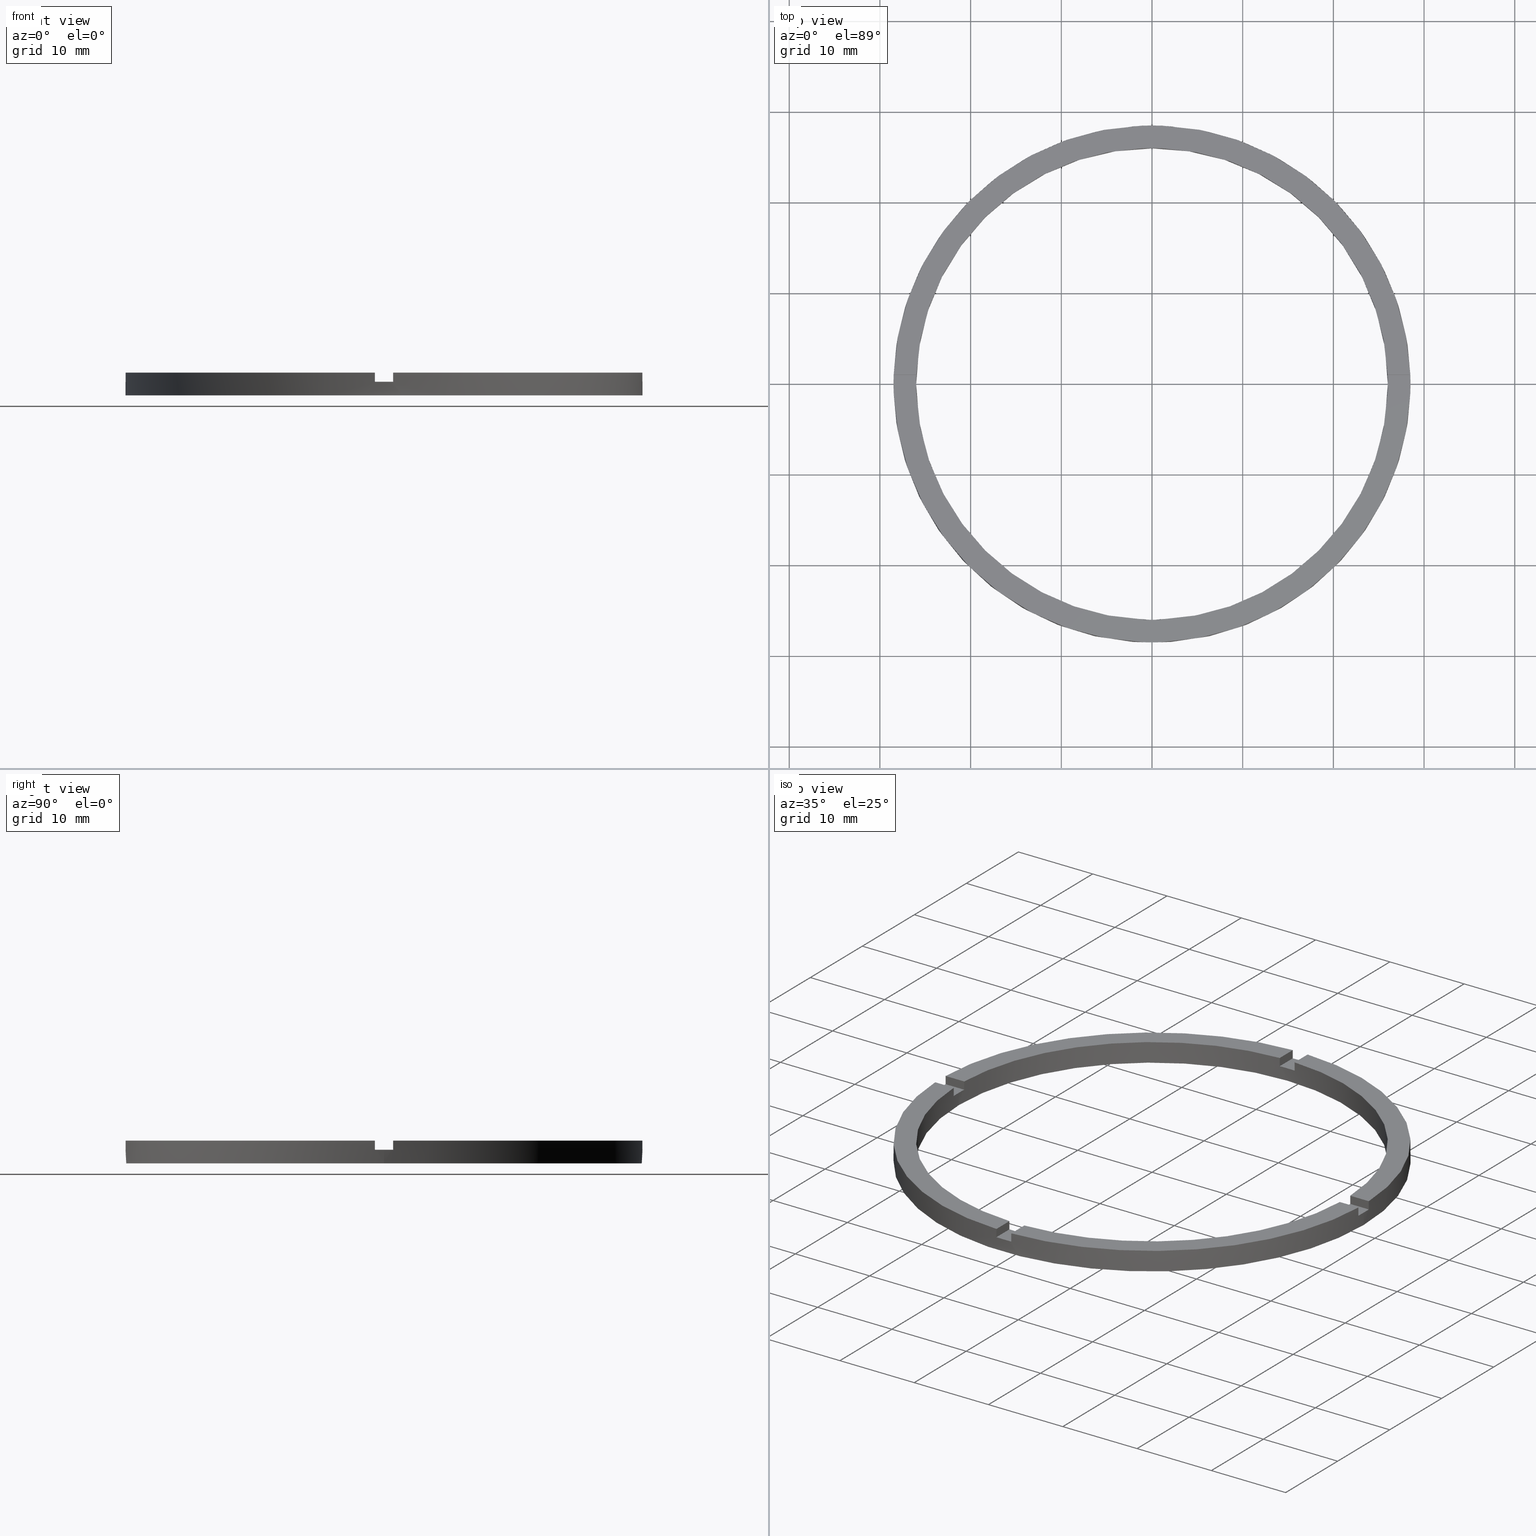
[diagram: canonical four-view strip — front | top / right | iso, engineering-drawing reading convention]
A machine part, canonical four-view strip (front | top / right | iso — engineering-drawing reading convention). The complete STEP part file that produces these views, byte-faithful:
ISO-10303-21;
HEADER;
FILE_DESCRIPTION (( 'STEP AP203' ),
    '1' );
FILE_NAME ('514118.step',
    '2024-12-26T02:39:14',
    ( 'MSI' ),
    ( '' ),
    'SwSTEP 2.0',
    'SolidWorks 2020',
    '' );
FILE_SCHEMA (( 'CONFIG_CONTROL_DESIGN' ));
ENDSEC;

DATA;
#1 = CARTESIAN_POINT ( 'NONE',  ( -25.98076211353316367, 0.9999999999999733546, 2.500000000000000000 ) ) ;
#2 = AXIS2_PLACEMENT_3D ( 'NONE', #506, #167, #369 ) ;
#3 = CARTESIAN_POINT ( 'NONE',  ( 0.000000000000000000, 0.000000000000000000, 2.500000000000000000 ) ) ;
#4 = PLANE ( 'NONE',  #2 ) ;
#5 = EDGE_CURVE ( 'NONE', #285, #237, #140, .T. ) ;
#6 = DIRECTION ( 'NONE',  ( -0.000000000000000000, -0.000000000000000000, -1.000000000000000000 ) ) ;
#7 = DIRECTION ( 'NONE',  ( 0.000000000000000000, 0.000000000000000000, 1.000000000000000000 ) ) ;
#8 = CC_DESIGN_APPROVAL ( #415, ( #621 ) ) ;
#9 = DIRECTION ( 'NONE',  ( 1.000000000000000000, 0.000000000000000000, 0.000000000000000000 ) ) ;
#10 = EDGE_CURVE ( 'NONE', #40, #599, #437, .T. ) ;
#11 = EDGE_CURVE ( 'NONE', #40, #287, #677, .T. ) ;
#12 = DIRECTION ( 'NONE',  ( 1.000000000000000000, 0.000000000000000000, 0.000000000000000000 ) ) ;
#13 = CC_DESIGN_PERSON_AND_ORGANIZATION_ASSIGNMENT ( #669, #14, ( #646 ) ) ;
#14 = PERSON_AND_ORGANIZATION_ROLE ( 'design_owner' ) ;
#15 = DIRECTION ( 'NONE',  ( -1.000000000000000000, -1.734723475976807341E-16, 0.000000000000000000 ) ) ;
#16 = CARTESIAN_POINT ( 'NONE',  ( 0.000000000000000000, 0.000000000000000000, 2.500000000000000000 ) ) ;
#17 = PRODUCT_RELATED_PRODUCT_CATEGORY ( 'detail', '', ( #646 ) ) ;
#18 = DIRECTION ( 'NONE',  ( -0.000000000000000000, -0.000000000000000000, -1.000000000000000000 ) ) ;
#19 = AXIS2_PLACEMENT_3D ( 'NONE', #356, #7, #538 ) ;
#20 = UNCERTAINTY_MEASURE_WITH_UNIT (LENGTH_MEASURE( 1.000000000000000082E-05 ), #606, 'distance_accuracy_value', 'NONE');
#21 = DATE_TIME_ROLE ( 'creation_date' ) ;
#22 = APPLICATION_CONTEXT ( 'configuration controlled 3d designs of mechanical parts and assemblies' ) ;
#23 = EDGE_CURVE ( 'NONE', #303, #101, #164, .T. ) ;
#24 = CARTESIAN_POINT ( 'NONE',  ( -28.48245073725222909, -1.000000000000027089, 1.500000000000000000 ) ) ;
#25 = DIRECTION ( 'NONE',  ( -0.000000000000000000, -0.000000000000000000, -1.000000000000000000 ) ) ;
#26 = CARTESIAN_POINT ( 'NONE',  ( 0.000000000000000000, 0.000000000000000000, 1.500000000000000000 ) ) ;
#27 = CC_DESIGN_PERSON_AND_ORGANIZATION_ASSIGNMENT ( #139, #432, ( #362 ) ) ;
#28 = DIRECTION ( 'NONE',  ( 0.000000000000000000, 0.000000000000000000, 1.000000000000000000 ) ) ;
#29 = CARTESIAN_POINT ( 'NONE',  ( 0.000000000000000000, 0.000000000000000000, 0.000000000000000000 ) ) ;
#30 = EDGE_CURVE ( 'NONE', #620, #105, #138, .T. ) ;
#31 = ORIENTED_EDGE ( 'NONE', *, *, #23, .T. ) ;
#32 = CARTESIAN_POINT ( 'NONE',  ( -28.48245073725222909, -1.000000000000027089, 2.500000000000000000 ) ) ;
#33 = VERTEX_POINT ( 'NONE', #556 ) ;
#34 = ORIENTED_EDGE ( 'NONE', *, *, #495, .F. ) ;
#35 = AXIS2_PLACEMENT_3D ( 'NONE', #161, #536, #572 ) ;
#36 = ORIENTED_EDGE ( 'NONE', *, *, #635, .T. ) ;
#37 = ORIENTED_EDGE ( 'NONE', *, *, #712, .T. ) ;
#38 = CARTESIAN_POINT ( 'NONE',  ( 18.50000000000000000, 0.9999999999998427924, 1.500000000000000000 ) ) ;
#39 = VERTEX_POINT ( 'NONE', #24 ) ;
#40 = VERTEX_POINT ( 'NONE', #194 ) ;
#41 = ORIENTED_EDGE ( 'NONE', *, *, #184, .T. ) ;
#42 = ORIENTED_EDGE ( 'NONE', *, *, #722, .F. ) ;
#43 = ADVANCED_FACE ( 'NONE', ( #694 ), #428, .F. ) ;
#44 = PLANE ( 'NONE',  #151 ) ;
#45 = DIRECTION ( 'NONE',  ( 1.000000000000000000, 0.000000000000000000, -0.000000000000000000 ) ) ;
#46 = AXIS2_PLACEMENT_3D ( 'NONE', #122, #633, #292 ) ;
#47 = ORIENTED_EDGE ( 'NONE', *, *, #624, .T. ) ;
#48 = AXIS2_PLACEMENT_3D ( 'NONE', #60, #403, #666 ) ;
#49 = ORIENTED_EDGE ( 'NONE', *, *, #539, .T. ) ;
#50 = EDGE_LOOP ( 'NONE', ( #358, #331, #353, #352 ) ) ;
#51 = ORIENTED_EDGE ( 'NONE', *, *, #635, .F. ) ;
#52 = DIRECTION ( 'NONE',  ( 0.000000000000000000, 0.000000000000000000, 1.000000000000000000 ) ) ;
#53 = DIRECTION ( 'NONE',  ( 1.000000000000000000, 0.000000000000000000, -0.000000000000000000 ) ) ;
#54 = ORIENTED_EDGE ( 'NONE', *, *, #5, .T. ) ;
#55 = VERTEX_POINT ( 'NONE', #260 ) ;
#56 = ORIENTED_EDGE ( 'NONE', *, *, #514, .F. ) ;
#57 = ORIENTED_EDGE ( 'NONE', *, *, #517, .F. ) ;
#58 = ORIENTED_EDGE ( 'NONE', *, *, #289, .T. ) ;
#59 = PERSON_AND_ORGANIZATION_ROLE ( 'creator' ) ;
#60 = CARTESIAN_POINT ( 'NONE',  ( 0.000000000000000000, 0.000000000000000000, 1.500000000000000000 ) ) ;
#61 = ORIENTED_EDGE ( 'NONE', *, *, #475, .T. ) ;
#62 = ORIENTED_EDGE ( 'NONE', *, *, #11, .T. ) ;
#63 = ORIENTED_EDGE ( 'NONE', *, *, #712, .F. ) ;
#64 = CARTESIAN_POINT ( 'NONE',  ( 0.000000000000000000, 0.000000000000000000, 2.500000000000000000 ) ) ;
#65 = ORIENTED_EDGE ( 'NONE', *, *, #192, .T. ) ;
#66 = ORIENTED_EDGE ( 'NONE', *, *, #334, .F. ) ;
#67 = EDGE_CURVE ( 'NONE', #590, #301, #156, .T. ) ;
#68 = ORIENTED_EDGE ( 'NONE', *, *, #673, .F. ) ;
#69 = VERTEX_POINT ( 'NONE', #381 ) ;
#70 = APPROVAL_STATUS ( 'not_yet_approved' ) ;
#71 = ORIENTED_EDGE ( 'NONE', *, *, #371, .T. ) ;
#72 = ORIENTED_EDGE ( 'NONE', *, *, #192, .F. ) ;
#73 = ORIENTED_EDGE ( 'NONE', *, *, #383, .F. ) ;
#74 = ORIENTED_EDGE ( 'NONE', *, *, #289, .F. ) ;
#75 = CARTESIAN_POINT ( 'NONE',  ( 0.000000000000000000, 0.000000000000000000, 1.500000000000000000 ) ) ;
#76 = VERTEX_POINT ( 'NONE', #688 ) ;
#77 = EDGE_LOOP ( 'NONE', ( #316, #628, #575, #250 ) ) ;
#78 = CC_DESIGN_PERSON_AND_ORGANIZATION_ASSIGNMENT ( #676, #209, ( #115 ) ) ;
#79 = EDGE_LOOP ( 'NONE', ( #330, #307, #311, #502 ) ) ;
#80 = VERTEX_POINT ( 'NONE', #510 ) ;
#81 = DIRECTION ( 'NONE',  ( 0.000000000000000000, 0.000000000000000000, 1.000000000000000000 ) ) ;
#82 = ORIENTED_EDGE ( 'NONE', *, *, #368, .T. ) ;
#83 = ORIENTED_EDGE ( 'NONE', *, *, #528, .F. ) ;
#84 = DIRECTION ( 'NONE',  ( 0.000000000000000000, 0.000000000000000000, 1.000000000000000000 ) ) ;
#85 = ORIENTED_EDGE ( 'NONE', *, *, #534, .F. ) ;
#86 = EDGE_CURVE ( 'NONE', #343, #622, #172, .T. ) ;
#87 = EDGE_LOOP ( 'NONE', ( #305, #223 ) ) ;
#88 = ORIENTED_EDGE ( 'NONE', *, *, #530, .F. ) ;
#89 = ORIENTED_EDGE ( 'NONE', *, *, #109, .T. ) ;
#90 = CARTESIAN_POINT ( 'NONE',  ( 0.9999999999998402389, -25.98076211353317078, 2.500000000000000000 ) ) ;
#91 = ORIENTED_EDGE ( 'NONE', *, *, #775, .F. ) ;
#92 = EDGE_CURVE ( 'NONE', #592, #303, #180, .T. ) ;
#93 = VERTEX_POINT ( 'NONE', #551 ) ;
#94 = EDGE_LOOP ( 'NONE', ( #603, #42, #227, #319 ) ) ;
#95 = EDGE_LOOP ( 'NONE', ( #574, #37, #83, #322 ) ) ;
#96 = DIRECTION ( 'NONE',  ( 0.000000000000000000, 0.000000000000000000, 1.000000000000000000 ) ) ;
#97 = ORIENTED_EDGE ( 'NONE', *, *, #653, .T. ) ;
#98 = ORIENTED_EDGE ( 'NONE', *, *, #135, .F. ) ;
#99 = PLANE ( 'NONE',  #638 ) ;
#100 = AXIS2_PLACEMENT_3D ( 'NONE', #64, #512, #443 ) ;
#101 = VERTEX_POINT ( 'NONE', #312 ) ;
#102 = DIRECTION ( 'NONE',  ( 0.000000000000000000, 0.000000000000000000, 1.000000000000000000 ) ) ;
#103 = VERTEX_POINT ( 'NONE', #449 ) ;
#104 = CARTESIAN_POINT ( 'NONE',  ( 25.98076211353317078, 0.9999999999998430145, 2.500000000000000000 ) ) ;
#105 = VERTEX_POINT ( 'NONE', #255 ) ;
#106 = EDGE_CURVE ( 'NONE', #55, #599, #426, .T. ) ;
#107 = DIRECTION ( 'NONE',  ( 1.000000000000000000, 0.000000000000000000, 0.000000000000000000 ) ) ;
#108 = CARTESIAN_POINT ( 'NONE',  ( -25.98076211353316367, -1.000000000000026645, 1.500000000000000000 ) ) ;
#109 = EDGE_CURVE ( 'NONE', #80, #237, #162, .T. ) ;
#110 = AXIS2_PLACEMENT_3D ( 'NONE', #525, #471, #645 ) ;
#111 = CARTESIAN_POINT ( 'NONE',  ( 0.000000000000000000, 0.000000000000000000, 1.500000000000000000 ) ) ;
#112 = DIRECTION ( 'NONE',  ( -0.000000000000000000, 0.000000000000000000, 1.000000000000000000 ) ) ;
#113 = PLANE ( 'NONE',  #19 ) ;
#114 = CARTESIAN_POINT ( 'NONE',  ( 0.000000000000000000, 0.000000000000000000, 2.500000000000000000 ) ) ;
#115 = PRODUCT_DEFINITION_FORMATION_WITH_SPECIFIED_SOURCE ( '�κ�', '', #646, .NOT_KNOWN. ) ;
#116 = DIRECTION ( 'NONE',  ( -4.336808689942018352E-17, 1.000000000000000000, 0.000000000000000000 ) ) ;
#117 = CARTESIAN_POINT ( 'NONE',  ( 28.48245073725223264, 0.9999999999998432365, 2.500000000000000000 ) ) ;
#118 = DIRECTION ( 'NONE',  ( 0.000000000000000000, 0.000000000000000000, 1.000000000000000000 ) ) ;
#119 = AXIS2_PLACEMENT_3D ( 'NONE', #480, #672, #251 ) ;
#120 = APPROVAL_STATUS ( 'not_yet_approved' ) ;
#121 = DIRECTION ( 'NONE',  ( 1.000000000000000000, 0.000000000000000000, 0.000000000000000000 ) ) ;
#122 = CARTESIAN_POINT ( 'NONE',  ( 0.000000000000000000, 0.000000000000000000, 2.500000000000000000 ) ) ;
#123 = AXIS2_PLACEMENT_3D ( 'NONE', #378, #697, #550 ) ;
#124 = DIRECTION ( 'NONE',  ( 0.000000000000000000, 0.000000000000000000, 1.000000000000000000 ) ) ;
#125 = CARTESIAN_POINT ( 'NONE',  ( -1.000000000000026423, 28.48245073725222909, 1.500000000000000000 ) ) ;
#126 = EDGE_CURVE ( 'NONE', #76, #101, #427, .T. ) ;
#127 = CARTESIAN_POINT ( 'NONE',  ( 0.000000000000000000, 0.000000000000000000, 0.000000000000000000 ) ) ;
#128 = DATE_AND_TIME ( #691, #410 ) ;
#129 = PERSON_AND_ORGANIZATION ( #683, #695 ) ;
#130 = CARTESIAN_POINT ( 'NONE',  ( 0.000000000000000000, 0.000000000000000000, 2.500000000000000000 ) ) ;
#131 = COORDINATED_UNIVERSAL_TIME_OFFSET ( 8, 0, .AHEAD. ) ;
#132 = CC_DESIGN_APPROVAL ( #254, ( #115 ) ) ;
#133 = APPROVAL_DATE_TIME ( #128, #254 ) ;
#134 = FACE_OUTER_BOUND ( 'NONE', #764, .T. ) ;
#135 = EDGE_CURVE ( 'NONE', #558, #69, #170, .T. ) ;
#136 = EDGE_CURVE ( 'NONE', #335, #69, #163, .T. ) ;
#137 = DATE_AND_TIME ( #674, #393 ) ;
#138 = LINE ( 'NONE', #643, #157 ) ;
#139 = PERSON_AND_ORGANIZATION ( #683, #695 ) ;
#140 = CIRCLE ( 'NONE', #374, 26.00000000000000355 ) ;
#141 = APPROVAL_DATE_TIME ( #670, #268 ) ;
#142 = ORIENTED_EDGE ( 'NONE', *, *, #136, .T. ) ;
#143 = COORDINATED_UNIVERSAL_TIME_OFFSET ( 8, 0, .AHEAD. ) ;
#144 = DIRECTION ( 'NONE',  ( -0.000000000000000000, -0.000000000000000000, -1.000000000000000000 ) ) ;
#145 = EDGE_CURVE ( 'NONE', #590, #343, #706, .T. ) ;
#146 = CALENDAR_DATE ( 2024, 26, 12 ) ;
#147 = SHAPE_DEFINITION_REPRESENTATION ( #366, #456 ) ;
#148 = DIRECTION ( 'NONE',  ( 0.000000000000000000, 1.000000000000000000, 0.000000000000000000 ) ) ;
#149 = VECTOR ( 'NONE', #417, 1000.000000000000000 ) ;
#150 = CARTESIAN_POINT ( 'NONE',  ( -26.00000000000000355, 0.000000000000000000, 2.500000000000000000 ) ) ;
#151 = AXIS2_PLACEMENT_3D ( 'NONE', #247, #619, #121 ) ;
#152 = LINE ( 'NONE', #266, #716 ) ;
#153 = LOCAL_TIME ( 10, 39, 14.00000000000000000, #671 ) ;
#154 = PLANE ( 'NONE',  #483 ) ;
#155 = ADVANCED_FACE ( 'NONE', ( #703 ), #704, .F. ) ;
#156 = LINE ( 'NONE', #200, #396 ) ;
#157 = VECTOR ( 'NONE', #709, 1000.000000000000000 ) ;
#158 = FACE_OUTER_BOUND ( 'NONE', #494, .T. ) ;
#159 = APPROVAL_PERSON_ORGANIZATION ( #395, #254, #256 ) ;
#160 = ORIENTED_EDGE ( 'NONE', *, *, #653, .F. ) ;
#161 = CARTESIAN_POINT ( 'NONE',  ( 18.50000000000000000, -1.000000000000157208, 1.500000000000000000 ) ) ;
#162 = LINE ( 'NONE', #199, #708 ) ;
#163 = LINE ( 'NONE', #90, #183 ) ;
#164 = LINE ( 'NONE', #682, #429 ) ;
#165 = CIRCLE ( 'NONE', #336, 28.50000000000000000 ) ;
#166 = CARTESIAN_POINT ( 'NONE',  ( 0.000000000000000000, 0.000000000000000000, 1.500000000000000000 ) ) ;
#167 = DIRECTION ( 'NONE',  ( 0.000000000000000000, -0.000000000000000000, 1.000000000000000000 ) ) ;
#168 = DIRECTION ( 'NONE',  ( 1.000000000000000000, 0.000000000000000000, -0.000000000000000000 ) ) ;
#169 = VECTOR ( 'NONE', #509, 1000.000000000000000 ) ;
#170 = LINE ( 'NONE', #252, #679 ) ;
#171 = FACE_OUTER_BOUND ( 'NONE', #570, .T. ) ;
#172 = LINE ( 'NONE', #548, #675 ) ;
#173 = DIRECTION ( 'NONE',  ( 0.000000000000000000, 0.000000000000000000, 1.000000000000000000 ) ) ;
#174 = CARTESIAN_POINT ( 'NONE',  ( -1.000000000000159872, -25.98076211353315657, 2.500000000000000000 ) ) ;
#175 = CIRCLE ( 'NONE', #758, 26.00000000000000355 ) ;
#176 = AXIS2_PLACEMENT_3D ( 'NONE', #38, #116, #762 ) ;
#177 = FACE_OUTER_BOUND ( 'NONE', #341, .T. ) ;
#178 = VECTOR ( 'NONE', #6, 1000.000000000000000 ) ;
#179 = ADVANCED_FACE ( 'NONE', ( #158 ), #544, .F. ) ;
#180 = LINE ( 'NONE', #379, #431 ) ;
#181 = CARTESIAN_POINT ( 'NONE',  ( 0.000000000000000000, 0.000000000000000000, 2.500000000000000000 ) ) ;
#182 = DIRECTION ( 'NONE',  ( 0.000000000000000000, 0.000000000000000000, 1.000000000000000000 ) ) ;
#183 = VECTOR ( 'NONE', #375, 1000.000000000000000 ) ;
#184 = EDGE_CURVE ( 'NONE', #340, #343, #711, .T. ) ;
#185 = VECTOR ( 'NONE', #658, 1000.000000000000000 ) ;
#186 = VECTOR ( 'NONE', #273, 1000.000000000000000 ) ;
#187 = VECTOR ( 'NONE', #613, 1000.000000000000000 ) ;
#188 = DIRECTION ( 'NONE',  ( 0.000000000000000000, 0.000000000000000000, 1.000000000000000000 ) ) ;
#189 = LINE ( 'NONE', #488, #468 ) ;
#190 = AXIS2_PLACEMENT_3D ( 'NONE', #519, #112, #731 ) ;
#191 = CIRCLE ( 'NONE', #119, 28.50000000000000000 ) ;
#192 = EDGE_CURVE ( 'NONE', #557, #103, #165, .T. ) ;
#193 = DIRECTION ( 'NONE',  ( 0.000000000000000000, 0.000000000000000000, 1.000000000000000000 ) ) ;
#194 = CARTESIAN_POINT ( 'NONE',  ( -26.00000000000000355, 0.000000000000000000, 1.500000000000000000 ) ) ;
#195 = VECTOR ( 'NONE', #489, 1000.000000000000000 ) ;
#196 = VECTOR ( 'NONE', #707, 1000.000000000000000 ) ;
#197 = DIRECTION ( 'NONE',  ( 1.000000000000000000, 1.734723475976807341E-16, -0.000000000000000000 ) ) ;
#198 = VECTOR ( 'NONE', #238, 1000.000000000000000 ) ;
#199 = CARTESIAN_POINT ( 'NONE',  ( 0.9999999999999735767, 25.98076211353316367, 2.500000000000000000 ) ) ;
#200 = CARTESIAN_POINT ( 'NONE',  ( -18.50000000000018474, 0.9999999999999746869, 1.500000000000000000 ) ) ;
#201 = CIRCLE ( 'NONE', #48, 26.00000000000000355 ) ;
#202 = AXIS2_PLACEMENT_3D ( 'NONE', #626, #759, #15 ) ;
#203 = VECTOR ( 'NONE', #425, 1000.000000000000000 ) ;
#204 = DIRECTION ( 'NONE',  ( 1.000000000000000000, 0.000000000000000000, 0.000000000000000000 ) ) ;
#205 = CIRCLE ( 'NONE', #665, 26.00000000000000355 ) ;
#206 = AXIS2_PLACEMENT_3D ( 'NONE', #535, #188, #744 ) ;
#207 = LINE ( 'NONE', #663, #187 ) ;
#208 = DIRECTION ( 'NONE',  ( 0.000000000000000000, 0.000000000000000000, 1.000000000000000000 ) ) ;
#209 = PERSON_AND_ORGANIZATION_ROLE ( 'creator' ) ;
#210 = LINE ( 'NONE', #540, #203 ) ;
#211 = CARTESIAN_POINT ( 'NONE',  ( 0.000000000000000000, 0.000000000000000000, 1.500000000000000000 ) ) ;
#212 = CIRCLE ( 'NONE', #576, 28.50000000000000000 ) ;
#213 = VECTOR ( 'NONE', #197, 1000.000000000000000 ) ;
#214 = VECTOR ( 'NONE', #332, 1000.000000000000000 ) ;
#215 = FACE_OUTER_BOUND ( 'NONE', #94, .T. ) ;
#216 = CIRCLE ( 'NONE', #564, 28.50000000000000000 ) ;
#217 = LINE ( 'NONE', #416, #756 ) ;
#218 = PLANE ( 'NONE',  #110 ) ;
#219 = CIRCLE ( 'NONE', #524, 26.00000000000000355 ) ;
#220 = DIRECTION ( 'NONE',  ( 1.000000000000000000, 1.734723475976807341E-16, 0.000000000000000000 ) ) ;
#221 = VERTEX_POINT ( 'NONE', #125 ) ;
#222 = DIRECTION ( 'NONE',  ( 1.000000000000000000, 0.000000000000000000, -0.000000000000000000 ) ) ;
#223 = ORIENTED_EDGE ( 'NONE', *, *, #539, .F. ) ;
#224 = ORIENTED_EDGE ( 'NONE', *, *, #67, .F. ) ;
#225 = AXIS2_PLACEMENT_3D ( 'NONE', #718, #144, #710 ) ;
#226 = DIRECTION ( 'NONE',  ( 1.000000000000000000, 0.000000000000000000, 0.000000000000000000 ) ) ;
#227 = ORIENTED_EDGE ( 'NONE', *, *, #380, .F. ) ;
#228 = DIRECTION ( 'NONE',  ( 1.000000000000000000, 0.000000000000000000, -0.000000000000000000 ) ) ;
#229 = ORIENTED_EDGE ( 'NONE', *, *, #106, .T. ) ;
#230 = ADVANCED_FACE ( 'NONE', ( #171 ), #696, .T. ) ;
#231 = ORIENTED_EDGE ( 'NONE', *, *, #109, .F. ) ;
#232 = ORIENTED_EDGE ( 'NONE', *, *, #10, .T. ) ;
#233 = CARTESIAN_POINT ( 'NONE',  ( 0.000000000000000000, 0.000000000000000000, 1.500000000000000000 ) ) ;
#234 = EDGE_CURVE ( 'NONE', #592, #526, #434, .T. ) ;
#235 = CARTESIAN_POINT ( 'NONE',  ( -1.000000000000026423, 28.48245073725222909, 2.500000000000000000 ) ) ;
#236 = ORIENTED_EDGE ( 'NONE', *, *, #136, .F. ) ;
#237 = VERTEX_POINT ( 'NONE', #639 ) ;
#238 = DIRECTION ( 'NONE',  ( -1.301042606982605567E-16, 1.000000000000000000, -0.000000000000000000 ) ) ;
#239 = CARTESIAN_POINT ( 'NONE',  ( 0.000000000000000000, 0.000000000000000000, 0.000000000000000000 ) ) ;
#240 = DIRECTION ( 'NONE',  ( 1.000000000000000000, 0.000000000000000000, 0.000000000000000000 ) ) ;
#241 = CARTESIAN_POINT ( 'NONE',  ( 0.000000000000000000, 0.000000000000000000, 0.000000000000000000 ) ) ;
#242 = CARTESIAN_POINT ( 'NONE',  ( 28.48245073725223264, 0.9999999999998432365, 2.500000000000000000 ) ) ;
#243 = EDGE_CURVE ( 'NONE', #526, #338, #713, .T. ) ;
#244 = AXIS2_PLACEMENT_3D ( 'NONE', #211, #641, #778 ) ;
#245 = DIRECTION ( 'NONE',  ( -0.000000000000000000, 0.000000000000000000, 1.000000000000000000 ) ) ;
#246 = ADVANCED_FACE ( 'NONE', ( #418 ), #394, .F. ) ;
#247 = CARTESIAN_POINT ( 'NONE',  ( 0.000000000000000000, 0.000000000000000000, 1.500000000000000000 ) ) ;
#248 = CARTESIAN_POINT ( 'NONE',  ( -1.000000000000159650, -28.48245073725222554, 2.500000000000000000 ) ) ;
#249 = ORIENTED_EDGE ( 'NONE', *, *, #616, .T. ) ;
#250 = ORIENTED_EDGE ( 'NONE', *, *, #367, .F. ) ;
#251 = DIRECTION ( 'NONE',  ( 1.000000000000000000, 0.000000000000000000, 0.000000000000000000 ) ) ;
#252 = CARTESIAN_POINT ( 'NONE',  ( 0.9999999999998391287, -18.50000000000018474, 1.500000000000000000 ) ) ;
#253 = CARTESIAN_POINT ( 'NONE',  ( 0.9999999999998404610, -28.48245073725223264, 1.500000000000000000 ) ) ;
#254 = APPROVAL ( #382, 'δָ��' ) ;
#255 = CARTESIAN_POINT ( 'NONE',  ( -1.000000000000159650, -28.48245073725222554, 1.500000000000000000 ) ) ;
#256 = APPROVAL_ROLE ( '' ) ;
#257 = DIRECTION ( 'NONE',  ( -0.000000000000000000, -1.000000000000000000, -0.000000000000000000 ) ) ;
#258 = DIRECTION ( 'NONE',  ( -1.000000000000000000, 0.000000000000000000, 0.000000000000000000 ) ) ;
#259 = CARTESIAN_POINT ( 'NONE',  ( 25.98076211353317078, 0.9999999999998430145, 2.500000000000000000 ) ) ;
#260 = CARTESIAN_POINT ( 'NONE',  ( -25.98076211353316367, -1.000000000000026645, 2.500000000000000000 ) ) ;
#261 = CARTESIAN_POINT ( 'NONE',  ( -25.98076211353316367, 0.9999999999999733546, 1.500000000000000000 ) ) ;
#262 = AXIS2_PLACEMENT_3D ( 'NONE', #661, #580, #240 ) ;
#263 = CARTESIAN_POINT ( 'NONE',  ( -26.00000000000000355, 0.000000000000000000, 0.000000000000000000 ) ) ;
#264 = EDGE_CURVE ( 'NONE', #584, #221, #715, .T. ) ;
#265 = DIRECTION ( 'NONE',  ( 0.000000000000000000, 0.000000000000000000, 1.000000000000000000 ) ) ;
#266 = CARTESIAN_POINT ( 'NONE',  ( -1.000000000000026423, 18.50000000000000355, 1.500000000000000000 ) ) ;
#267 = DIRECTION ( 'NONE',  ( -0.000000000000000000, -0.000000000000000000, -1.000000000000000000 ) ) ;
#268 = APPROVAL ( #70, 'δָ��' ) ;
#269 = DIRECTION ( 'NONE',  ( 1.000000000000000000, 0.000000000000000000, 0.000000000000000000 ) ) ;
#270 = EDGE_CURVE ( 'NONE', #761, #285, #420, .T. ) ;
#271 = EDGE_CURVE ( 'NONE', #526, #594, #175, .T. ) ;
#272 = DIRECTION ( 'NONE',  ( -0.000000000000000000, -0.000000000000000000, -1.000000000000000000 ) ) ;
#273 = DIRECTION ( 'NONE',  ( -0.000000000000000000, -0.000000000000000000, -1.000000000000000000 ) ) ;
#274 = ADVANCED_FACE ( 'NONE', ( #446 ), #780, .T. ) ;
#275 = CARTESIAN_POINT ( 'NONE',  ( 0.9999999999998391287, -18.50000000000018474, 2.500000000000000000 ) ) ;
#276 = EDGE_CURVE ( 'NONE', #221, #93, #152, .T. ) ;
#277 = ADVANCED_FACE ( 'NONE', ( #177 ), #560, .T. ) ;
#278 = CARTESIAN_POINT ( 'NONE',  ( 18.50000000000000000, -1.000000000000157208, 1.500000000000000000 ) ) ;
#279 = CARTESIAN_POINT ( 'NONE',  ( -28.50000000000000000, 0.000000000000000000, 2.500000000000000000 ) ) ;
#280 = CARTESIAN_POINT ( 'NONE',  ( 0.000000000000000000, 0.000000000000000000, 2.500000000000000000 ) ) ;
#281 = CC_DESIGN_SECURITY_CLASSIFICATION ( #362, ( #115 ) ) ;
#282 = ADVANCED_FACE ( 'NONE', ( #700 ), #99, .T. ) ;
#283 = AXIS2_PLACEMENT_3D ( 'NONE', #26, #351, #228 ) ;
#284 = CARTESIAN_POINT ( 'NONE',  ( 0.000000000000000000, 0.000000000000000000, 2.500000000000000000 ) ) ;
#285 = VERTEX_POINT ( 'NONE', #259 ) ;
#286 = ORIENTED_EDGE ( 'NONE', *, *, #517, .T. ) ;
#287 = VERTEX_POINT ( 'NONE', #263 ) ;
#288 = CARTESIAN_POINT ( 'NONE',  ( 28.50000000000000000, 3.490243377569956456E-15, 2.500000000000000000 ) ) ;
#289 = EDGE_CURVE ( 'NONE', #80, #93, #719, .T. ) ;
#290 = ORIENTED_EDGE ( 'NONE', *, *, #86, .F. ) ;
#291 = EDGE_LOOP ( 'NONE', ( #568, #585, #31, #88 ) ) ;
#292 = DIRECTION ( 'NONE',  ( -1.000000000000000000, 0.000000000000000000, 0.000000000000000000 ) ) ;
#293 = ORIENTED_EDGE ( 'NONE', *, *, #276, .F. ) ;
#294 = SECURITY_CLASSIFICATION_LEVEL ( 'unclassified' ) ;
#295 = ORIENTED_EDGE ( 'NONE', *, *, #30, .T. ) ;
#296 = DIRECTION ( 'NONE',  ( 1.000000000000000000, 0.000000000000000000, 0.000000000000000000 ) ) ;
#297 = ORIENTED_EDGE ( 'NONE', *, *, #660, .T. ) ;
#298 = VERTEX_POINT ( 'NONE', #387 ) ;
#299 = DIRECTION ( 'NONE',  ( -1.301042606982605567E-16, 1.000000000000000000, -0.000000000000000000 ) ) ;
#300 = ORIENTED_EDGE ( 'NONE', *, *, #234, .T. ) ;
#301 = VERTEX_POINT ( 'NONE', #693 ) ;
#302 = CARTESIAN_POINT ( 'NONE',  ( -18.50000000000018474, -1.000000000000025313, 2.500000000000000000 ) ) ;
#303 = VERTEX_POINT ( 'NONE', #447 ) ;
#304 = AXIS2_PLACEMENT_3D ( 'NONE', #280, #182, #53 ) ;
#305 = ORIENTED_EDGE ( 'NONE', *, *, #624, .F. ) ;
#306 = ORIENTED_EDGE ( 'NONE', *, *, #11, .F. ) ;
#307 = ORIENTED_EDGE ( 'NONE', *, *, #422, .F. ) ;
#308 = EDGE_CURVE ( 'NONE', #592, #611, #440, .T. ) ;
#309 = EDGE_LOOP ( 'NONE', ( #354, #229, #34, #760 ) ) ;
#310 = ORIENTED_EDGE ( 'NONE', *, *, #234, .F. ) ;
#311 = ORIENTED_EDGE ( 'NONE', *, *, #545, .F. ) ;
#312 = CARTESIAN_POINT ( 'NONE',  ( 28.48245073725222554, -1.000000000000156763, 2.500000000000000000 ) ) ;
#313 = ORIENTED_EDGE ( 'NONE', *, *, #264, .T. ) ;
#314 = ORIENTED_EDGE ( 'NONE', *, *, #67, .T. ) ;
#315 = VERTEX_POINT ( 'NONE', #248 ) ;
#316 = ORIENTED_EDGE ( 'NONE', *, *, #30, .F. ) ;
#317 = ORIENTED_EDGE ( 'NONE', *, *, #334, .T. ) ;
#318 = ORIENTED_EDGE ( 'NONE', *, *, #135, .T. ) ;
#319 = ORIENTED_EDGE ( 'NONE', *, *, #126, .T. ) ;
#320 = CARTESIAN_POINT ( 'NONE',  ( -1.000000000000159650, -28.48245073725222554, 2.500000000000000000 ) ) ;
#321 = ORIENTED_EDGE ( 'NONE', *, *, #308, .T. ) ;
#322 = ORIENTED_EDGE ( 'NONE', *, *, #617, .F. ) ;
#323 = PLANE ( 'NONE',  #35 ) ;
#324 = ORIENTED_EDGE ( 'NONE', *, *, #442, .F. ) ;
#325 = ORIENTED_EDGE ( 'NONE', *, *, #514, .T. ) ;
#326 = ORIENTED_EDGE ( 'NONE', *, *, #530, .T. ) ;
#327 = ORIENTED_EDGE ( 'NONE', *, *, #461, .F. ) ;
#328 = DIRECTION ( 'NONE',  ( 0.000000000000000000, -0.000000000000000000, 1.000000000000000000 ) ) ;
#329 = ORIENTED_EDGE ( 'NONE', *, *, #368, .F. ) ;
#330 = ORIENTED_EDGE ( 'NONE', *, *, #355, .F. ) ;
#331 = ORIENTED_EDGE ( 'NONE', *, *, #5, .F. ) ;
#332 = DIRECTION ( 'NONE',  ( 0.000000000000000000, 0.000000000000000000, 1.000000000000000000 ) ) ;
#333 = EDGE_LOOP ( 'NONE', ( #71, #65, #553, #587, #310, #321 ) ) ;
#334 = EDGE_CURVE ( 'NONE', #340, #93, #419, .T. ) ;
#335 = VERTEX_POINT ( 'NONE', #543 ) ;
#336 = AXIS2_PLACEMENT_3D ( 'NONE', #75, #84, #771 ) ;
#337 = ADVANCED_FACE ( 'NONE', ( #441 ), #705, .F. ) ;
#338 = VERTEX_POINT ( 'NONE', #520 ) ;
#339 = AXIS2_PLACEMENT_3D ( 'NONE', #284, #173, #586 ) ;
#340 = VERTEX_POINT ( 'NONE', #656 ) ;
#341 = EDGE_LOOP ( 'NONE', ( #249, #414, #363, #518, #630, #314 ) ) ;
#342 = CARTESIAN_POINT ( 'NONE',  ( 0.9999999999999735767, 18.50000000000000355, 2.500000000000000000 ) ) ;
#343 = VERTEX_POINT ( 'NONE', #1 ) ;
#344 = CARTESIAN_POINT ( 'NONE',  ( 26.00000000000000355, 3.184081677783118585E-15, 2.500000000000000000 ) ) ;
#345 = ORIENTED_EDGE ( 'NONE', *, *, #485, .T. ) ;
#346 = ORIENTED_EDGE ( 'NONE', *, *, #616, .F. ) ;
#347 = ORIENTED_EDGE ( 'NONE', *, *, #692, .T. ) ;
#348 = PLANE ( 'NONE',  #176 ) ;
#349 = CARTESIAN_POINT ( 'NONE',  ( -28.48245073725223264, 0.9999999999999729106, 2.500000000000000000 ) ) ;
#350 = ORIENTED_EDGE ( 'NONE', *, *, #145, .F. ) ;
#351 = DIRECTION ( 'NONE',  ( 0.000000000000000000, 0.000000000000000000, 1.000000000000000000 ) ) ;
#352 = ORIENTED_EDGE ( 'NONE', *, *, #421, .T. ) ;
#353 = ORIENTED_EDGE ( 'NONE', *, *, #270, .F. ) ;
#354 = ORIENTED_EDGE ( 'NONE', *, *, #545, .T. ) ;
#355 = EDGE_CURVE ( 'NONE', #632, #315, #721, .T. ) ;
#356 = CARTESIAN_POINT ( 'NONE',  ( 0.000000000000000000, 0.000000000000000000, 0.000000000000000000 ) ) ;
#357 = DIRECTION ( 'NONE',  ( 0.000000000000000000, 0.000000000000000000, 1.000000000000000000 ) ) ;
#358 = ORIENTED_EDGE ( 'NONE', *, *, #729, .F. ) ;
#359 = ORIENTED_EDGE ( 'NONE', *, *, #86, .T. ) ;
#360 = DIRECTION ( 'NONE',  ( 1.000000000000000000, 0.000000000000000000, 0.000000000000000000 ) ) ;
#361 = ORIENTED_EDGE ( 'NONE', *, *, #442, .T. ) ;
#362 = SECURITY_CLASSIFICATION ( '', '', #294 ) ;
#363 = ORIENTED_EDGE ( 'NONE', *, *, #495, .T. ) ;
#364 = DIRECTION ( 'NONE',  ( -0.000000000000000000, -0.000000000000000000, -1.000000000000000000 ) ) ;
#365 =( NAMED_UNIT ( * ) PLANE_ANGLE_UNIT ( ) SI_UNIT ( $, .RADIAN. ) );
#366 = PRODUCT_DEFINITION_SHAPE ( 'NONE', 'NONE',  #621 ) ;
#367 = EDGE_CURVE ( 'NONE', #105, #315, #702, .T. ) ;
#368 = EDGE_CURVE ( 'NONE', #80, #584, #423, .T. ) ;
#369 = DIRECTION ( 'NONE',  ( 1.000000000000000000, 0.000000000000000000, -0.000000000000000000 ) ) ;
#370 = AXIS2_PLACEMENT_3D ( 'NONE', #127, #81, #204 ) ;
#371 = EDGE_CURVE ( 'NONE', #611, #557, #755, .T. ) ;
#372 = DIRECTION ( 'NONE',  ( -0.000000000000000000, -0.000000000000000000, -1.000000000000000000 ) ) ;
#373 = PLANE ( 'NONE',  #777 ) ;
#374 = AXIS2_PLACEMENT_3D ( 'NONE', #717, #102, #781 ) ;
#375 = DIRECTION ( 'NONE',  ( -0.000000000000000000, -0.000000000000000000, -1.000000000000000000 ) ) ;
#376 = AXIS2_PLACEMENT_3D ( 'NONE', #166, #384, #360 ) ;
#377 = CARTESIAN_POINT ( 'NONE',  ( -1.000000000000026423, 18.50000000000000355, 2.500000000000000000 ) ) ;
#378 = CARTESIAN_POINT ( 'NONE',  ( 0.000000000000000000, 0.000000000000000000, 1.500000000000000000 ) ) ;
#379 = CARTESIAN_POINT ( 'NONE',  ( 25.98076211353315657, -1.000000000000156986, 2.500000000000000000 ) ) ;
#380 = EDGE_CURVE ( 'NONE', #76, #335, #460, .T. ) ;
#381 = CARTESIAN_POINT ( 'NONE',  ( 0.9999999999998402389, -25.98076211353317078, 1.500000000000000000 ) ) ;
#382 = APPROVAL_STATUS ( 'not_yet_approved' ) ;
#383 = EDGE_CURVE ( 'NONE', #579, #39, #191, .T. ) ;
#384 = DIRECTION ( 'NONE',  ( 0.000000000000000000, 0.000000000000000000, 1.000000000000000000 ) ) ;
#385 = CARTESIAN_POINT ( 'NONE',  ( -28.48245073725223264, 0.9999999999999729106, 2.500000000000000000 ) ) ;
#386 =( GEOMETRIC_REPRESENTATION_CONTEXT ( 3 ) GLOBAL_UNCERTAINTY_ASSIGNED_CONTEXT ( ( #20 ) ) GLOBAL_UNIT_ASSIGNED_CONTEXT ( ( #606, #365, #409 ) ) REPRESENTATION_CONTEXT ( 'NONE', 'WORKASPACE' ) );
#387 = CARTESIAN_POINT ( 'NONE',  ( 0.9999999999999735767, 28.48245073725223264, 2.500000000000000000 ) ) ;
#388 = CARTESIAN_POINT ( 'NONE',  ( 25.98076211353317078, 0.9999999999998430145, 1.500000000000000000 ) ) ;
#389 = PERSON_AND_ORGANIZATION ( #683, #695 ) ;
#390 = LOCAL_TIME ( 10, 39, 14.00000000000000000, #686 ) ;
#391 = CALENDAR_DATE ( 2024, 26, 12 ) ;
#392 = CALENDAR_DATE ( 2024, 26, 12 ) ;
#393 = LOCAL_TIME ( 10, 39, 14.00000000000000000, #131 ) ;
#394 = PLANE ( 'NONE',  #593 ) ;
#395 = PERSON_AND_ORGANIZATION ( #683, #695 ) ;
#396 = VECTOR ( 'NONE', #627, 1000.000000000000000 ) ;
#397 = PERSON_AND_ORGANIZATION ( #683, #695 ) ;
#398 = VECTOR ( 'NONE', #267, 1000.000000000000000 ) ;
#399 = PERSON_AND_ORGANIZATION ( #683, #695 ) ;
#400 = APPROVAL_DATE_TIME ( #137, #415 ) ;
#401 = LINE ( 'NONE', #174, #149 ) ;
#402 = APPROVAL_PERSON_ORGANIZATION ( #399, #415, #424 ) ;
#403 = DIRECTION ( 'NONE',  ( 0.000000000000000000, 0.000000000000000000, 1.000000000000000000 ) ) ;
#404 = CARTESIAN_POINT ( 'NONE',  ( 28.50000000000000000, 3.490243377569956456E-15, 0.000000000000000000 ) ) ;
#405 = AXIS2_PLACEMENT_3D ( 'NONE', #130, #208, #435 ) ;
#406 = DATE_AND_TIME ( #146, #680 ) ;
#407 = FACE_OUTER_BOUND ( 'NONE', #79, .T. ) ;
#408 = DIRECTION ( 'NONE',  ( 1.000000000000000000, 1.734723475976807341E-16, -0.000000000000000000 ) ) ;
#409 =( NAMED_UNIT ( * ) SI_UNIT ( $, .STERADIAN. ) SOLID_ANGLE_UNIT ( ) );
#410 = LOCAL_TIME ( 10, 39, 14.00000000000000000, #143 ) ;
#411 = ADVANCED_FACE ( 'NONE', ( #448 ), #4, .T. ) ;
#412 = CARTESIAN_POINT ( 'NONE',  ( -1.000000000000026423, 25.98076211353316367, 2.500000000000000000 ) ) ;
#413 = VECTOR ( 'NONE', #507, 1000.000000000000000 ) ;
#414 = ORIENTED_EDGE ( 'NONE', *, *, #383, .T. ) ;
#415 = APPROVAL ( #120, 'δָ��' ) ;
#416 = CARTESIAN_POINT ( 'NONE',  ( -28.48245073725222909, -1.000000000000027089, 2.500000000000000000 ) ) ;
#417 = DIRECTION ( 'NONE',  ( 0.000000000000000000, 0.000000000000000000, 1.000000000000000000 ) ) ;
#418 = FACE_OUTER_BOUND ( 'NONE', #618, .T. ) ;
#419 = LINE ( 'NONE', #412, #178 ) ;
#420 = LINE ( 'NONE', #521, #438 ) ;
#421 = EDGE_CURVE ( 'NONE', #761, #298, #212, .T. ) ;
#422 = EDGE_CURVE ( 'NONE', #55, #632, #727, .T. ) ;
#423 = LINE ( 'NONE', #642, #196 ) ;
#424 = APPROVAL_ROLE ( '' ) ;
#425 = DIRECTION ( 'NONE',  ( -1.000000000000000000, -4.336808689942018352E-17, -0.000000000000000000 ) ) ;
#426 = LINE ( 'NONE', #753, #444 ) ;
#427 = CIRCLE ( 'NONE', #405, 28.50000000000000000 ) ;
#428 = PLANE ( 'NONE',  #523 ) ;
#429 = VECTOR ( 'NONE', #698, 1000.000000000000000 ) ;
#430 = AXIS2_PLACEMENT_3D ( 'NONE', #29, #265, #650 ) ;
#431 = VECTOR ( 'NONE', #513, 1000.000000000000000 ) ;
#432 = PERSON_AND_ORGANIZATION_ROLE ( 'classification_officer' ) ;
#433 = DIRECTION ( 'NONE',  ( -1.000000000000000000, 0.000000000000000000, 0.000000000000000000 ) ) ;
#434 = CIRCLE ( 'NONE', #123, 26.00000000000000355 ) ;
#435 = DIRECTION ( 'NONE',  ( 1.000000000000000000, 0.000000000000000000, 0.000000000000000000 ) ) ;
#436 = CARTESIAN_POINT ( 'NONE',  ( 0.9999999999999735767, 18.50000000000000355, 1.500000000000000000 ) ) ;
#437 = CIRCLE ( 'NONE', #453, 26.00000000000000355 ) ;
#438 = VECTOR ( 'NONE', #466, 1000.000000000000000 ) ;
#439 = CARTESIAN_POINT ( 'NONE',  ( 28.50000000000000000, 3.490243377569956456E-15, 1.500000000000000000 ) ) ;
#440 = LINE ( 'NONE', #278, #413 ) ;
#441 = FACE_OUTER_BOUND ( 'NONE', #309, .T. ) ;
#442 = EDGE_CURVE ( 'NONE', #584, #298, #207, .T. ) ;
#443 = DIRECTION ( 'NONE',  ( 1.000000000000000000, 0.000000000000000000, 0.000000000000000000 ) ) ;
#444 = VECTOR ( 'NONE', #547, 1000.000000000000000 ) ;
#445 = AXIS2_PLACEMENT_3D ( 'NONE', #458, #776, #220 ) ;
#446 = FACE_OUTER_BOUND ( 'NONE', #333, .T. ) ;
#447 = CARTESIAN_POINT ( 'NONE',  ( 25.98076211353315657, -1.000000000000156986, 2.500000000000000000 ) ) ;
#448 = FACE_OUTER_BOUND ( 'NONE', #614, .T. ) ;
#449 = CARTESIAN_POINT ( 'NONE',  ( 28.48245073725223264, 0.9999999999998432365, 1.500000000000000000 ) ) ;
#450 = CYLINDRICAL_SURFACE ( 'NONE', #225, 28.50000000000000000 ) ;
#451 = FACE_OUTER_BOUND ( 'NONE', #291, .T. ) ;
#452 = LINE ( 'NONE', #242, #482 ) ;
#453 = AXIS2_PLACEMENT_3D ( 'NONE', #233, #28, #107 ) ;
#454 = CIRCLE ( 'NONE', #430, 28.50000000000000000 ) ;
#455 = LINE ( 'NONE', #288, #185 ) ;
#456 = ADVANCED_BREP_SHAPE_REPRESENTATION ( '514118', ( #623, #736 ), #386 ) ;
#457 = DIRECTION ( 'NONE',  ( 1.000000000000000000, 0.000000000000000000, 0.000000000000000000 ) ) ;
#458 = CARTESIAN_POINT ( 'NONE',  ( -18.50000000000018474, -1.000000000000025313, 1.500000000000000000 ) ) ;
#459 = VECTOR ( 'NONE', #257, 1000.000000000000000 ) ;
#460 = LINE ( 'NONE', #275, #198 ) ;
#461 = EDGE_CURVE ( 'NONE', #620, #69, #219, .T. ) ;
#462 = LINE ( 'NONE', #542, #473 ) ;
#463 = CIRCLE ( 'NONE', #516, 28.50000000000000000 ) ;
#464 = DIRECTION ( 'NONE',  ( -0.000000000000000000, -0.000000000000000000, -1.000000000000000000 ) ) ;
#465 = CIRCLE ( 'NONE', #370, 28.50000000000000000 ) ;
#466 = DIRECTION ( 'NONE',  ( -1.000000000000000000, -4.336808689942018352E-17, -0.000000000000000000 ) ) ;
#467 = CARTESIAN_POINT ( 'NONE',  ( -1.000000000000160982, -18.50000000000018474, 2.500000000000000000 ) ) ;
#468 = VECTOR ( 'NONE', #408, 1000.000000000000000 ) ;
#469 = CC_DESIGN_DATE_AND_TIME_ASSIGNMENT ( #406, #21, ( #621 ) ) ;
#470 = CYLINDRICAL_SURFACE ( 'NONE', #498, 26.00000000000000355 ) ;
#471 = DIRECTION ( 'NONE',  ( -1.000000000000000000, -1.301042606982605567E-16, 0.000000000000000000 ) ) ;
#472 = ADVANCED_FACE ( 'NONE', ( #739, #479 ), #113, .F. ) ;
#473 = VECTOR ( 'NONE', #597, 1000.000000000000000 ) ;
#474 = CARTESIAN_POINT ( 'NONE',  ( 0.9999999999998391287, -18.50000000000018474, 1.500000000000000000 ) ) ;
#475 = EDGE_CURVE ( 'NONE', #608, #39, #217, .T. ) ;
#476 = FACE_OUTER_BOUND ( 'NONE', #773, .T. ) ;
#477 = EDGE_CURVE ( 'NONE', #590, #40, #201, .T. ) ;
#478 = LINE ( 'NONE', #377, #459 ) ;
#479 = FACE_BOUND ( 'NONE', #767, .T. ) ;
#480 = CARTESIAN_POINT ( 'NONE',  ( 0.000000000000000000, 0.000000000000000000, 1.500000000000000000 ) ) ;
#481 = DIRECTION ( 'NONE',  ( 0.000000000000000000, 0.000000000000000000, 1.000000000000000000 ) ) ;
#482 = VECTOR ( 'NONE', #464, 1000.000000000000000 ) ;
#483 = AXIS2_PLACEMENT_3D ( 'NONE', #114, #96, #168 ) ;
#484 = LINE ( 'NONE', #779, #186 ) ;
#485 = EDGE_CURVE ( 'NONE', #579, #33, #751, .T. ) ;
#486 = ORIENTED_EDGE ( 'NONE', *, *, #549, .F. ) ;
#487 = ORIENTED_EDGE ( 'NONE', *, *, #617, .T. ) ;
#488 = CARTESIAN_POINT ( 'NONE',  ( -18.50000000000018474, -1.000000000000025313, 1.500000000000000000 ) ) ;
#489 = DIRECTION ( 'NONE',  ( -0.000000000000000000, -0.000000000000000000, -1.000000000000000000 ) ) ;
#490 = ORIENTED_EDGE ( 'NONE', *, *, #477, .T. ) ;
#491 = EDGE_LOOP ( 'NONE', ( #329, #89, #588, #324 ) ) ;
#492 = ADVANCED_FACE ( 'NONE', ( #749 ), #470, .F. ) ;
#493 = CLOSED_SHELL ( 'NONE', ( #155, #651, #782, #282, #662, #740, #472, #230, #492, #337, #179, #277, #246, #644, #501, #532, #601, #274, #569, #43, #411 ) ) ;
#494 = EDGE_LOOP ( 'NONE', ( #224, #763, #359, #51 ) ) ;
#495 = EDGE_CURVE ( 'NONE', #39, #599, #189, .T. ) ;
#496 = DIRECTION ( 'NONE',  ( 0.000000000000000000, 0.000000000000000000, 1.000000000000000000 ) ) ;
#497 = ORIENTED_EDGE ( 'NONE', *, *, #371, .F. ) ;
#498 = AXIS2_PLACEMENT_3D ( 'NONE', #181, #372, #605 ) ;
#499 = ORIENTED_EDGE ( 'NONE', *, *, #271, .T. ) ;
#500 = ORIENTED_EDGE ( 'NONE', *, *, #126, .F. ) ;
#501 = ADVANCED_FACE ( 'NONE', ( #725 ), #44, .T. ) ;
#502 = ORIENTED_EDGE ( 'NONE', *, *, #534, .T. ) ;
#503 = CARTESIAN_POINT ( 'NONE',  ( 26.00000000000000355, 3.184081677783118585E-15, 1.500000000000000000 ) ) ;
#504 = EDGE_CURVE ( 'NONE', #625, #622, #754, .T. ) ;
#505 = PERSON_AND_ORGANIZATION_ROLE ( 'design_supplier' ) ;
#506 = CARTESIAN_POINT ( 'NONE',  ( 0.000000000000000000, 0.000000000000000000, 1.500000000000000000 ) ) ;
#507 = DIRECTION ( 'NONE',  ( 1.000000000000000000, 4.336808689942018352E-17, 0.000000000000000000 ) ) ;
#508 = DIRECTION ( 'NONE',  ( 0.000000000000000000, 0.000000000000000000, -1.000000000000000000 ) ) ;
#509 = DIRECTION ( 'NONE',  ( 0.000000000000000000, 0.000000000000000000, 1.000000000000000000 ) ) ;
#510 = CARTESIAN_POINT ( 'NONE',  ( 0.9999999999999735767, 25.98076211353316367, 1.500000000000000000 ) ) ;
#511 = AXIS2_PLACEMENT_3D ( 'NONE', #239, #357, #457 ) ;
#512 = DIRECTION ( 'NONE',  ( 0.000000000000000000, 0.000000000000000000, 1.000000000000000000 ) ) ;
#513 = DIRECTION ( 'NONE',  ( 0.000000000000000000, 0.000000000000000000, 1.000000000000000000 ) ) ;
#514 = EDGE_CURVE ( 'NONE', #557, #596, #455, .T. ) ;
#515 = DATE_TIME_ROLE ( 'classification_date' ) ;
#516 = AXIS2_PLACEMENT_3D ( 'NONE', #16, #685, #296 ) ;
#517 = EDGE_CURVE ( 'NONE', #287, #338, #205, .T. ) ;
#518 = ORIENTED_EDGE ( 'NONE', *, *, #10, .F. ) ;
#519 = CARTESIAN_POINT ( 'NONE',  ( 0.000000000000000000, 0.000000000000000000, 1.500000000000000000 ) ) ;
#520 = CARTESIAN_POINT ( 'NONE',  ( 26.00000000000000355, 3.184081677783118585E-15, 0.000000000000000000 ) ) ;
#521 = CARTESIAN_POINT ( 'NONE',  ( 18.50000000000000000, 0.9999999999998427924, 2.500000000000000000 ) ) ;
#522 = DIRECTION ( 'NONE',  ( 0.000000000000000000, 0.000000000000000000, 1.000000000000000000 ) ) ;
#523 = AXIS2_PLACEMENT_3D ( 'NONE', #436, #772, #508 ) ;
#524 = AXIS2_PLACEMENT_3D ( 'NONE', #111, #245, #9 ) ;
#525 = CARTESIAN_POINT ( 'NONE',  ( -1.000000000000160982, -18.50000000000018474, 1.500000000000000000 ) ) ;
#526 = VERTEX_POINT ( 'NONE', #503 ) ;
#527 = DIRECTION ( 'NONE',  ( 1.301042606982605567E-16, -1.000000000000000000, 0.000000000000000000 ) ) ;
#528 = EDGE_CURVE ( 'NONE', #103, #594, #210, .T. ) ;
#529 = PLANE ( 'NONE',  #657 ) ;
#530 = EDGE_CURVE ( 'NONE', #611, #101, #462, .T. ) ;
#531 = DIRECTION ( 'NONE',  ( 1.000000000000000000, 1.301042606982605567E-16, 0.000000000000000000 ) ) ;
#532 = ADVANCED_FACE ( 'NONE', ( #741 ), #348, .F. ) ;
#533 = CARTESIAN_POINT ( 'NONE',  ( -1.000000000000159872, -25.98076211353315657, 2.500000000000000000 ) ) ;
#534 = EDGE_CURVE ( 'NONE', #608, #315, #463, .T. ) ;
#535 = CARTESIAN_POINT ( 'NONE',  ( 0.000000000000000000, 0.000000000000000000, 2.500000000000000000 ) ) ;
#536 = DIRECTION ( 'NONE',  ( 4.336808689942018352E-17, -1.000000000000000000, 0.000000000000000000 ) ) ;
#537 = CC_DESIGN_PERSON_AND_ORGANIZATION_ASSIGNMENT ( #389, #505, ( #115 ) ) ;
#538 = DIRECTION ( 'NONE',  ( 1.000000000000000000, 0.000000000000000000, -0.000000000000000000 ) ) ;
#539 = EDGE_CURVE ( 'NONE', #596, #33, #465, .T. ) ;
#540 = CARTESIAN_POINT ( 'NONE',  ( 18.50000000000000000, 0.9999999999998427924, 1.500000000000000000 ) ) ;
#541 = APPLICATION_PROTOCOL_DEFINITION ( 'international standard', 'config_control_design', 1994, #640 ) ;
#542 = CARTESIAN_POINT ( 'NONE',  ( 28.48245073725222554, -1.000000000000156763, 2.500000000000000000 ) ) ;
#543 = CARTESIAN_POINT ( 'NONE',  ( 0.9999999999998402389, -25.98076211353317078, 2.500000000000000000 ) ) ;
#544 = PLANE ( 'NONE',  #202 ) ;
#545 = EDGE_CURVE ( 'NONE', #608, #55, #747, .T. ) ;
#546 = CARTESIAN_POINT ( 'NONE',  ( -28.50000000000000000, 0.000000000000000000, 1.500000000000000000 ) ) ;
#547 = DIRECTION ( 'NONE',  ( -0.000000000000000000, -0.000000000000000000, -1.000000000000000000 ) ) ;
#548 = CARTESIAN_POINT ( 'NONE',  ( -18.50000000000018474, 0.9999999999999746869, 2.500000000000000000 ) ) ;
#549 = EDGE_CURVE ( 'NONE', #625, #340, #478, .T. ) ;
#550 = DIRECTION ( 'NONE',  ( 1.000000000000000000, 0.000000000000000000, 0.000000000000000000 ) ) ;
#551 = CARTESIAN_POINT ( 'NONE',  ( -1.000000000000026423, 25.98076211353316367, 1.500000000000000000 ) ) ;
#552 = MECHANICAL_CONTEXT ( 'NONE', #22, 'mechanical' ) ;
#553 = ORIENTED_EDGE ( 'NONE', *, *, #528, .T. ) ;
#554 = CARTESIAN_POINT ( 'NONE',  ( 0.000000000000000000, 0.000000000000000000, 2.500000000000000000 ) ) ;
#555 = ORIENTED_EDGE ( 'NONE', *, *, #380, .T. ) ;
#556 = CARTESIAN_POINT ( 'NONE',  ( -28.50000000000000000, 0.000000000000000000, 0.000000000000000000 ) ) ;
#557 = VERTEX_POINT ( 'NONE', #439 ) ;
#558 = VERTEX_POINT ( 'NONE', #253 ) ;
#559 = EDGE_LOOP ( 'NONE', ( #72, #325, #49, #757, #346, #36, #770, #347, #600, #361, #561, #487 ) ) ;
#560 = PLANE ( 'NONE',  #244 ) ;
#561 = ORIENTED_EDGE ( 'NONE', *, *, #421, .F. ) ;
#562 = DIRECTION ( 'NONE',  ( 0.000000000000000000, 0.000000000000000000, 1.000000000000000000 ) ) ;
#563 = EDGE_LOOP ( 'NONE', ( #297, #318, #327, #295 ) ) ;
#564 = AXIS2_PLACEMENT_3D ( 'NONE', #654, #481, #226 ) ;
#565 = CARTESIAN_POINT ( 'NONE',  ( 28.48245073725222554, -1.000000000000156763, 1.500000000000000000 ) ) ;
#566 = ORIENTED_EDGE ( 'NONE', *, *, #367, .T. ) ;
#567 = DIRECTION ( 'NONE',  ( -0.000000000000000000, -0.000000000000000000, -1.000000000000000000 ) ) ;
#568 = ORIENTED_EDGE ( 'NONE', *, *, #308, .F. ) ;
#569 = ADVANCED_FACE ( 'NONE', ( #476 ), #373, .F. ) ;
#570 = EDGE_LOOP ( 'NONE', ( #56, #497, #326, #500, #583, #607, #566, #85, #61, #73, #345, #47 ) ) ;
#571 = ORIENTED_EDGE ( 'NONE', *, *, #92, .F. ) ;
#572 = DIRECTION ( 'NONE',  ( 1.000000000000000000, 4.336808689942018352E-17, 0.000000000000000000 ) ) ;
#573 = EDGE_LOOP ( 'NONE', ( #604, #499, #63, #54, #231, #58, #66, #41, #350, #490, #62, #160 ) ) ;
#574 = ORIENTED_EDGE ( 'NONE', *, *, #270, .T. ) ;
#575 = ORIENTED_EDGE ( 'NONE', *, *, #355, .T. ) ;
#576 = AXIS2_PLACEMENT_3D ( 'NONE', #750, #52, #12 ) ;
#577 = ORIENTED_EDGE ( 'NONE', *, *, #106, .F. ) ;
#578 = CARTESIAN_POINT ( 'NONE',  ( 0.9999999999999735767, 28.48245073725223264, 1.500000000000000000 ) ) ;
#579 = VERTEX_POINT ( 'NONE', #546 ) ;
#580 = DIRECTION ( 'NONE',  ( 0.000000000000000000, -0.000000000000000000, 1.000000000000000000 ) ) ;
#581 = ORIENTED_EDGE ( 'NONE', *, *, #461, .T. ) ;
#582 = ORIENTED_EDGE ( 'NONE', *, *, #184, .F. ) ;
#583 = ORIENTED_EDGE ( 'NONE', *, *, #673, .T. ) ;
#584 = VERTEX_POINT ( 'NONE', #578 ) ;
#585 = ORIENTED_EDGE ( 'NONE', *, *, #92, .T. ) ;
#586 = DIRECTION ( 'NONE',  ( 1.000000000000000000, 0.000000000000000000, 0.000000000000000000 ) ) ;
#587 = ORIENTED_EDGE ( 'NONE', *, *, #271, .F. ) ;
#588 = ORIENTED_EDGE ( 'NONE', *, *, #729, .T. ) ;
#589 = DIRECTION ( 'NONE',  ( 0.000000000000000000, 0.000000000000000000, 1.000000000000000000 ) ) ;
#590 = VERTEX_POINT ( 'NONE', #261 ) ;
#591 = ORIENTED_EDGE ( 'NONE', *, *, #549, .T. ) ;
#592 = VERTEX_POINT ( 'NONE', #659 ) ;
#593 = AXIS2_PLACEMENT_3D ( 'NONE', #474, #531, #647 ) ;
#594 = VERTEX_POINT ( 'NONE', #388 ) ;
#595 = ORIENTED_EDGE ( 'NONE', *, *, #504, .T. ) ;
#596 = VERTEX_POINT ( 'NONE', #404 ) ;
#597 = DIRECTION ( 'NONE',  ( 0.000000000000000000, 0.000000000000000000, 1.000000000000000000 ) ) ;
#598 = DIRECTION ( 'NONE',  ( 0.000000000000000000, 0.000000000000000000, 1.000000000000000000 ) ) ;
#599 = VERTEX_POINT ( 'NONE', #108 ) ;
#600 = ORIENTED_EDGE ( 'NONE', *, *, #264, .F. ) ;
#601 = ADVANCED_FACE ( 'NONE', ( #451 ), #323, .F. ) ;
#602 = ORIENTED_EDGE ( 'NONE', *, *, #276, .T. ) ;
#603 = ORIENTED_EDGE ( 'NONE', *, *, #23, .F. ) ;
#604 = ORIENTED_EDGE ( 'NONE', *, *, #243, .F. ) ;
#605 = DIRECTION ( 'NONE',  ( -1.000000000000000000, 0.000000000000000000, 0.000000000000000000 ) ) ;
#606 =( LENGTH_UNIT ( ) NAMED_UNIT ( * ) SI_UNIT ( .MILLI., .METRE. ) );
#607 = ORIENTED_EDGE ( 'NONE', *, *, #660, .F. ) ;
#608 = VERTEX_POINT ( 'NONE', #32 ) ;
#609 = CC_DESIGN_DATE_AND_TIME_ASSIGNMENT ( #678, #515, ( #362 ) ) ;
#610 = DIRECTION ( 'NONE',  ( 1.000000000000000000, 0.000000000000000000, 0.000000000000000000 ) ) ;
#611 = VERTEX_POINT ( 'NONE', #565 ) ;
#612 = ORIENTED_EDGE ( 'NONE', *, *, #692, .F. ) ;
#613 = DIRECTION ( 'NONE',  ( 0.000000000000000000, 0.000000000000000000, 1.000000000000000000 ) ) ;
#614 = EDGE_LOOP ( 'NONE', ( #313, #602, #74, #82 ) ) ;
#615 = ORIENTED_EDGE ( 'NONE', *, *, #422, .T. ) ;
#616 = EDGE_CURVE ( 'NONE', #301, #579, #216, .T. ) ;
#617 = EDGE_CURVE ( 'NONE', #761, #103, #452, .T. ) ;
#618 = EDGE_LOOP ( 'NONE', ( #555, #142, #98, #68 ) ) ;
#619 = DIRECTION ( 'NONE',  ( -0.000000000000000000, 0.000000000000000000, 1.000000000000000000 ) ) ;
#620 = VERTEX_POINT ( 'NONE', #724 ) ;
#621 = PRODUCT_DEFINITION ( 'δ֪', '', #115, #774 ) ;
#622 = VERTEX_POINT ( 'NONE', #349 ) ;
#623 = MANIFOLD_SOLID_BREP ( '�г�-����1', #493 ) ;
#624 = EDGE_CURVE ( 'NONE', #33, #596, #454, .T. ) ;
#625 = VERTEX_POINT ( 'NONE', #738 ) ;
#626 = CARTESIAN_POINT ( 'NONE',  ( -18.50000000000018474, 0.9999999999999746869, 1.500000000000000000 ) ) ;
#627 = DIRECTION ( 'NONE',  ( -1.000000000000000000, -1.734723475976807341E-16, 0.000000000000000000 ) ) ;
#628 = ORIENTED_EDGE ( 'NONE', *, *, #775, .T. ) ;
#629 = CARTESIAN_POINT ( 'NONE',  ( -1.000000000000026423, 18.50000000000000355, 1.500000000000000000 ) ) ;
#630 = ORIENTED_EDGE ( 'NONE', *, *, #477, .F. ) ;
#631 = EDGE_LOOP ( 'NONE', ( #300, #766, #57, #306, #232, #577, #615, #91, #581, #236, #768, #571 ) ) ;
#632 = VERTEX_POINT ( 'NONE', #533 ) ;
#633 = DIRECTION ( 'NONE',  ( -0.000000000000000000, -0.000000000000000000, -1.000000000000000000 ) ) ;
#634 = DIRECTION ( 'NONE',  ( -1.000000000000000000, -1.734723475976807341E-16, 0.000000000000000000 ) ) ;
#635 = EDGE_CURVE ( 'NONE', #301, #622, #742, .T. ) ;
#636 = APPROVAL_ROLE ( '' ) ;
#637 = DIRECTION ( 'NONE',  ( 1.000000000000000000, 0.000000000000000000, 0.000000000000000000 ) ) ;
#638 = AXIS2_PLACEMENT_3D ( 'NONE', #554, #522, #222 ) ;
#639 = CARTESIAN_POINT ( 'NONE',  ( 0.9999999999999735767, 25.98076211353316367, 2.500000000000000000 ) ) ;
#640 = APPLICATION_CONTEXT ( 'configuration controlled 3d designs of mechanical parts and assemblies' ) ;
#641 = DIRECTION ( 'NONE',  ( 0.000000000000000000, 0.000000000000000000, 1.000000000000000000 ) ) ;
#642 = CARTESIAN_POINT ( 'NONE',  ( 0.9999999999999735767, 18.50000000000000355, 1.500000000000000000 ) ) ;
#643 = CARTESIAN_POINT ( 'NONE',  ( -1.000000000000160982, -18.50000000000018474, 1.500000000000000000 ) ) ;
#644 = ADVANCED_FACE ( 'NONE', ( #743 ), #218, .F. ) ;
#645 = DIRECTION ( 'NONE',  ( 1.301042606982605567E-16, -1.000000000000000000, 0.000000000000000000 ) ) ;
#646 = PRODUCT ( '514118', '514118', '', ( #552 ) ) ;
#647 = DIRECTION ( 'NONE',  ( -1.301042606982605567E-16, 1.000000000000000000, 0.000000000000000000 ) ) ;
#648 = CARTESIAN_POINT ( 'NONE',  ( 0.000000000000000000, 0.000000000000000000, 1.500000000000000000 ) ) ;
#649 = AXIS2_PLACEMENT_3D ( 'NONE', #783, #598, #269 ) ;
#650 = DIRECTION ( 'NONE',  ( 1.000000000000000000, 0.000000000000000000, 0.000000000000000000 ) ) ;
#651 = ADVANCED_FACE ( 'NONE', ( #746 ), #450, .T. ) ;
#652 = DIRECTION ( 'NONE',  ( 1.000000000000000000, 0.000000000000000000, 0.000000000000000000 ) ) ;
#653 = EDGE_CURVE ( 'NONE', #338, #287, #752, .T. ) ;
#654 = CARTESIAN_POINT ( 'NONE',  ( 0.000000000000000000, 0.000000000000000000, 1.500000000000000000 ) ) ;
#655 = CARTESIAN_POINT ( 'NONE',  ( 0.000000000000000000, 0.000000000000000000, 1.500000000000000000 ) ) ;
#656 = CARTESIAN_POINT ( 'NONE',  ( -1.000000000000026423, 25.98076211353316367, 2.500000000000000000 ) ) ;
#657 = AXIS2_PLACEMENT_3D ( 'NONE', #3, #496, #45 ) ;
#658 = DIRECTION ( 'NONE',  ( -0.000000000000000000, -0.000000000000000000, -1.000000000000000000 ) ) ;
#659 = CARTESIAN_POINT ( 'NONE',  ( 25.98076211353315657, -1.000000000000156986, 1.500000000000000000 ) ) ;
#660 = EDGE_CURVE ( 'NONE', #105, #558, #735, .T. ) ;
#661 = CARTESIAN_POINT ( 'NONE',  ( 0.000000000000000000, 0.000000000000000000, 1.500000000000000000 ) ) ;
#662 = ADVANCED_FACE ( 'NONE', ( #215 ), #154, .T. ) ;
#663 = CARTESIAN_POINT ( 'NONE',  ( 0.9999999999999735767, 28.48245073725223264, 2.500000000000000000 ) ) ;
#664 = AXIS2_PLACEMENT_3D ( 'NONE', #765, #18, #258 ) ;
#665 = AXIS2_PLACEMENT_3D ( 'NONE', #241, #730, #737 ) ;
#666 = DIRECTION ( 'NONE',  ( 1.000000000000000000, 0.000000000000000000, 0.000000000000000000 ) ) ;
#667 = PLANE ( 'NONE',  #304 ) ;
#668 = VECTOR ( 'NONE', #148, 1000.000000000000000 ) ;
#669 = PERSON_AND_ORGANIZATION ( #683, #695 ) ;
#670 = DATE_AND_TIME ( #392, #390 ) ;
#671 = COORDINATED_UNIVERSAL_TIME_OFFSET ( 8, 0, .AHEAD. ) ;
#672 = DIRECTION ( 'NONE',  ( 0.000000000000000000, 0.000000000000000000, 1.000000000000000000 ) ) ;
#673 = EDGE_CURVE ( 'NONE', #76, #558, #484, .T. ) ;
#674 = CALENDAR_DATE ( 2024, 26, 12 ) ;
#675 = VECTOR ( 'NONE', #634, 1000.000000000000000 ) ;
#676 = PERSON_AND_ORGANIZATION ( #683, #695 ) ;
#677 = LINE ( 'NONE', #150, #398 ) ;
#678 = DATE_AND_TIME ( #391, #153 ) ;
#679 = VECTOR ( 'NONE', #299, 1000.000000000000000 ) ;
#680 = LOCAL_TIME ( 10, 39, 14.00000000000000000, #689 ) ;
#681 = CARTESIAN_POINT ( 'NONE',  ( -25.98076211353316367, 0.9999999999999733546, 2.500000000000000000 ) ) ;
#682 = CARTESIAN_POINT ( 'NONE',  ( 18.50000000000000000, -1.000000000000157208, 2.500000000000000000 ) ) ;
#683 = PERSON ( 'δָ��', 'δָ��', 'δָ��', ('δָ��'), ('δָ��'), ('δָ��') ) ;
#684 = APPLICATION_PROTOCOL_DEFINITION ( 'international standard', 'config_control_design', 1994, #22 ) ;
#685 = DIRECTION ( 'NONE',  ( 0.000000000000000000, 0.000000000000000000, 1.000000000000000000 ) ) ;
#686 = COORDINATED_UNIVERSAL_TIME_OFFSET ( 8, 0, .AHEAD. ) ;
#687 = CC_DESIGN_PERSON_AND_ORGANIZATION_ASSIGNMENT ( #129, #59, ( #621 ) ) ;
#688 = CARTESIAN_POINT ( 'NONE',  ( 0.9999999999998404610, -28.48245073725223264, 2.500000000000000000 ) ) ;
#689 = COORDINATED_UNIVERSAL_TIME_OFFSET ( 8, 0, .AHEAD. ) ;
#690 = VECTOR ( 'NONE', #567, 1000.000000000000000 ) ;
#691 = CALENDAR_DATE ( 2024, 26, 12 ) ;
#692 = EDGE_CURVE ( 'NONE', #625, #221, #726, .T. ) ;
#693 = CARTESIAN_POINT ( 'NONE',  ( -28.48245073725223264, 0.9999999999999729106, 1.500000000000000000 ) ) ;
#694 = FACE_OUTER_BOUND ( 'NONE', #491, .T. ) ;
#695 = ORGANIZATION ( 'δָ��', 'δָ��', '' ) ;
#696 = CYLINDRICAL_SURFACE ( 'NONE', #664, 28.50000000000000000 ) ;
#697 = DIRECTION ( 'NONE',  ( 0.000000000000000000, 0.000000000000000000, 1.000000000000000000 ) ) ;
#698 = DIRECTION ( 'NONE',  ( 1.000000000000000000, 4.336808689942018352E-17, 0.000000000000000000 ) ) ;
#699 = APPROVAL_PERSON_ORGANIZATION ( #397, #268, #636 ) ;
#700 = FACE_OUTER_BOUND ( 'NONE', #50, .T. ) ;
#701 = VECTOR ( 'NONE', #527, 1000.000000000000000 ) ;
#702 = LINE ( 'NONE', #320, #723 ) ;
#703 = FACE_OUTER_BOUND ( 'NONE', #631, .T. ) ;
#704 = CYLINDRICAL_SURFACE ( 'NONE', #46, 26.00000000000000355 ) ;
#705 = PLANE ( 'NONE',  #445 ) ;
#706 = LINE ( 'NONE', #681, #169 ) ;
#707 = DIRECTION ( 'NONE',  ( 0.000000000000000000, 1.000000000000000000, 0.000000000000000000 ) ) ;
#708 = VECTOR ( 'NONE', #193, 1000.000000000000000 ) ;
#709 = DIRECTION ( 'NONE',  ( 1.301042606982605567E-16, -1.000000000000000000, 0.000000000000000000 ) ) ;
#710 = DIRECTION ( 'NONE',  ( -1.000000000000000000, 0.000000000000000000, 0.000000000000000000 ) ) ;
#711 = CIRCLE ( 'NONE', #100, 26.00000000000000355 ) ;
#712 = EDGE_CURVE ( 'NONE', #285, #594, #732, .T. ) ;
#713 = LINE ( 'NONE', #344, #690 ) ;
#714 = AXIS2_PLACEMENT_3D ( 'NONE', #648, #328, #637 ) ;
#715 = CIRCLE ( 'NONE', #262, 28.50000000000000000 ) ;
#716 = VECTOR ( 'NONE', #720, 1000.000000000000000 ) ;
#717 = CARTESIAN_POINT ( 'NONE',  ( 0.000000000000000000, 0.000000000000000000, 2.500000000000000000 ) ) ;
#718 = CARTESIAN_POINT ( 'NONE',  ( 0.000000000000000000, 0.000000000000000000, 2.500000000000000000 ) ) ;
#719 = CIRCLE ( 'NONE', #714, 26.00000000000000355 ) ;
#720 = DIRECTION ( 'NONE',  ( -0.000000000000000000, -1.000000000000000000, -0.000000000000000000 ) ) ;
#721 = LINE ( 'NONE', #467, #701 ) ;
#722 = EDGE_CURVE ( 'NONE', #335, #303, #733, .T. ) ;
#723 = VECTOR ( 'NONE', #562, 1000.000000000000000 ) ;
#724 = CARTESIAN_POINT ( 'NONE',  ( -1.000000000000159872, -25.98076211353315657, 1.500000000000000000 ) ) ;
#725 = FACE_OUTER_BOUND ( 'NONE', #563, .T. ) ;
#726 = LINE ( 'NONE', #235, #728 ) ;
#727 = CIRCLE ( 'NONE', #339, 26.00000000000000355 ) ;
#728 = VECTOR ( 'NONE', #25, 1000.000000000000000 ) ;
#729 = EDGE_CURVE ( 'NONE', #237, #298, #734, .T. ) ;
#730 = DIRECTION ( 'NONE',  ( 0.000000000000000000, 0.000000000000000000, 1.000000000000000000 ) ) ;
#731 = DIRECTION ( 'NONE',  ( 1.000000000000000000, 0.000000000000000000, 0.000000000000000000 ) ) ;
#732 = LINE ( 'NONE', #104, #195 ) ;
#733 = CIRCLE ( 'NONE', #649, 26.00000000000000355 ) ;
#734 = LINE ( 'NONE', #342, #668 ) ;
#735 = CIRCLE ( 'NONE', #190, 28.50000000000000000 ) ;
#736 = AXIS2_PLACEMENT_3D ( 'NONE', #745, #118, #610 ) ;
#737 = DIRECTION ( 'NONE',  ( 1.000000000000000000, 0.000000000000000000, 0.000000000000000000 ) ) ;
#738 = CARTESIAN_POINT ( 'NONE',  ( -1.000000000000026423, 28.48245073725222909, 2.500000000000000000 ) ) ;
#739 = FACE_OUTER_BOUND ( 'NONE', #87, .T. ) ;
#740 = ADVANCED_FACE ( 'NONE', ( #407 ), #529, .T. ) ;
#741 = FACE_OUTER_BOUND ( 'NONE', #95, .T. ) ;
#742 = LINE ( 'NONE', #385, #214 ) ;
#743 = FACE_OUTER_BOUND ( 'NONE', #77, .T. ) ;
#744 = DIRECTION ( 'NONE',  ( 1.000000000000000000, 0.000000000000000000, 0.000000000000000000 ) ) ;
#745 = CARTESIAN_POINT ( 'NONE',  ( 0.000000000000000000, 0.000000000000000000, 0.000000000000000000 ) ) ;
#746 = FACE_OUTER_BOUND ( 'NONE', #559, .T. ) ;
#747 = LINE ( 'NONE', #302, #213 ) ;
#748 = VECTOR ( 'NONE', #272, 1000.000000000000000 ) ;
#749 = FACE_OUTER_BOUND ( 'NONE', #573, .T. ) ;
#750 = CARTESIAN_POINT ( 'NONE',  ( 0.000000000000000000, 0.000000000000000000, 2.500000000000000000 ) ) ;
#751 = LINE ( 'NONE', #279, #748 ) ;
#752 = CIRCLE ( 'NONE', #511, 26.00000000000000355 ) ;
#753 = CARTESIAN_POINT ( 'NONE',  ( -25.98076211353316367, -1.000000000000026645, 2.500000000000000000 ) ) ;
#754 = CIRCLE ( 'NONE', #206, 28.50000000000000000 ) ;
#755 = CIRCLE ( 'NONE', #376, 28.50000000000000000 ) ;
#756 = VECTOR ( 'NONE', #364, 1000.000000000000000 ) ;
#757 = ORIENTED_EDGE ( 'NONE', *, *, #485, .F. ) ;
#758 = AXIS2_PLACEMENT_3D ( 'NONE', #655, #589, #652 ) ;
#759 = DIRECTION ( 'NONE',  ( -1.734723475976807341E-16, 1.000000000000000000, 0.000000000000000000 ) ) ;
#760 = ORIENTED_EDGE ( 'NONE', *, *, #475, .F. ) ;
#761 = VERTEX_POINT ( 'NONE', #117 ) ;
#762 = DIRECTION ( 'NONE',  ( -1.000000000000000000, -4.336808689942018352E-17, 0.000000000000000000 ) ) ;
#763 = ORIENTED_EDGE ( 'NONE', *, *, #145, .T. ) ;
#764 = EDGE_LOOP ( 'NONE', ( #486, #595, #290, #582 ) ) ;
#765 = CARTESIAN_POINT ( 'NONE',  ( 0.000000000000000000, 0.000000000000000000, 2.500000000000000000 ) ) ;
#766 = ORIENTED_EDGE ( 'NONE', *, *, #243, .T. ) ;
#767 = EDGE_LOOP ( 'NONE', ( #286, #97 ) ) ;
#768 = ORIENTED_EDGE ( 'NONE', *, *, #722, .T. ) ;
#769 = CC_DESIGN_APPROVAL ( #268, ( #362 ) ) ;
#770 = ORIENTED_EDGE ( 'NONE', *, *, #504, .F. ) ;
#771 = DIRECTION ( 'NONE',  ( 1.000000000000000000, 0.000000000000000000, 0.000000000000000000 ) ) ;
#772 = DIRECTION ( 'NONE',  ( 1.000000000000000000, -0.000000000000000000, 0.000000000000000000 ) ) ;
#773 = EDGE_LOOP ( 'NONE', ( #591, #317, #293, #612 ) ) ;
#774 = DESIGN_CONTEXT ( 'detailed design', #640, 'design' ) ;
#775 = EDGE_CURVE ( 'NONE', #620, #632, #401, .T. ) ;
#776 = DIRECTION ( 'NONE',  ( 1.734723475976807341E-16, -1.000000000000000000, 0.000000000000000000 ) ) ;
#777 = AXIS2_PLACEMENT_3D ( 'NONE', #629, #433, #124 ) ;
#778 = DIRECTION ( 'NONE',  ( 1.000000000000000000, 0.000000000000000000, -0.000000000000000000 ) ) ;
#779 = CARTESIAN_POINT ( 'NONE',  ( 0.9999999999998404610, -28.48245073725223264, 2.500000000000000000 ) ) ;
#780 = PLANE ( 'NONE',  #283 ) ;
#781 = DIRECTION ( 'NONE',  ( 1.000000000000000000, 0.000000000000000000, 0.000000000000000000 ) ) ;
#782 = ADVANCED_FACE ( 'NONE', ( #134 ), #667, .T. ) ;
#783 = CARTESIAN_POINT ( 'NONE',  ( 0.000000000000000000, 0.000000000000000000, 2.500000000000000000 ) ) ;
ENDSEC;
END-ISO-10303-21;
